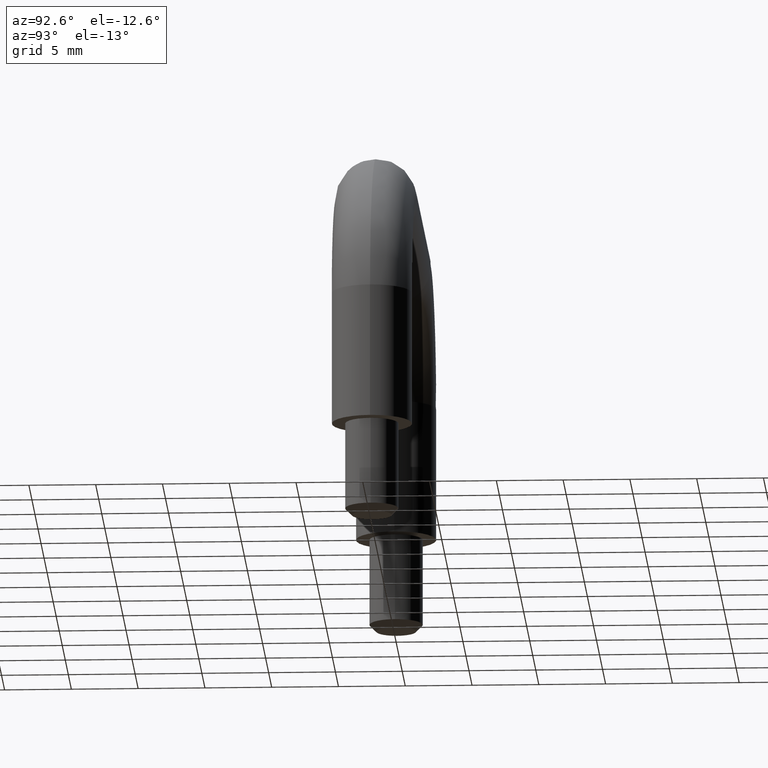
[diagram: clean part render]
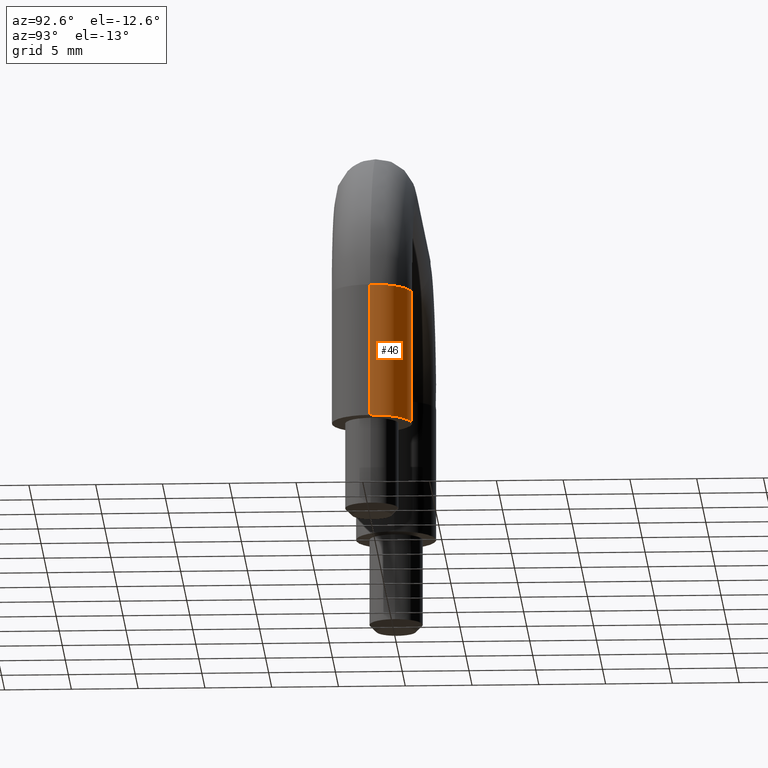
[diagram: same view with one face highlighted and labeled with its STEP entity id]
A machine part, auxiliary view. The second image highlights one B-rep face of the part: STEP entity #46.
In plain terms, the highlighted cylindrical surface (partial cylindrical patch) has radius 3 mm, axis along (0, -0, 1).
Its self-contained STEP definition (entity closure, byte-faithful):
#46=ADVANCED_FACE('',(#125),#124,.T.);
#124=CYLINDRICAL_SURFACE('',#409,3.00000000000E+00);
#125=FACE_OUTER_BOUND('',#410,.T.);
#406=CARTESIAN_POINT('',(1.99999999999E+01,0.00000000000E+00,-1.10000000000E+01));
#407=DIRECTION('',(0.00000000000E+00,-0.00000000000E+00,1.00000000000E+00));
#408=DIRECTION('',(1.00000000000E+00,-0.00000000000E+00,-0.00000000000E+00));
#409=AXIS2_PLACEMENT_3D('',#406,#407,#408);
#410=EDGE_LOOP('',(#572,#573,#574,#575));
#572=ORIENTED_EDGE('',*,*,#646,.F.);
#573=ORIENTED_EDGE('',*,*,#654,.F.);
#574=ORIENTED_EDGE('',*,*,#638,.F.);
#575=ORIENTED_EDGE('',*,*,#655,.T.);
#638=EDGE_CURVE('',#692,#693,#694,.T.);
#646=EDGE_CURVE('',#735,#728,#748,.T.);
#654=EDGE_CURVE('',#693,#735,#802,.T.);
#655=EDGE_CURVE('',#692,#728,#808,.T.);
#692=VERTEX_POINT('',#964);
#693=VERTEX_POINT('',#965);
#694=CIRCLE('',#969,3.00000000000E+00);
#728=VERTEX_POINT('',#990);
#735=VERTEX_POINT('',#995);
#748=CIRCLE('',#1008,3.00000000000E+00);
#802=(BOUNDED_CURVE() B_SPLINE_CURVE(1,(#1043,#1044),.UNSPECIFIED.,.F.,.F.) B_SPLINE_CURVE_WITH_KNOTS((2,2),(8.33333343261E-02,9.16666667006E-01),.UNSPECIFIED.) CURVE() GEOMETRIC_REPRESENTATION_ITEM() RATIONAL_B_SPLINE_CURVE((1.00000000000E+00,1.00000000000E+00)) REPRESENTATION_ITEM('') );
#808=(BOUNDED_CURVE() B_SPLINE_CURVE(1,(#1045,#1046),.UNSPECIFIED.,.F.,.F.) B_SPLINE_CURVE_WITH_KNOTS((2,2),(8.33333333333E-02,9.16666666667E-01),.UNSPECIFIED.) CURVE() GEOMETRIC_REPRESENTATION_ITEM() RATIONAL_B_SPLINE_CURVE((7.50000000000E-01,7.50000000000E-01)) REPRESENTATION_ITEM('') );
#964=CARTESIAN_POINT('',(1.69999999999E+01,-3.67381906147E-16,-1.60000000000E+01));
#965=CARTESIAN_POINT('',(2.29999999999E+01,-2.96059473233E-16,-1.60000000000E+01));
#966=CARTESIAN_POINT('',(1.99999999999E+01,0.00000000000E+00,-1.60000000000E+01));
#967=DIRECTION('',(0.00000000000E+00,0.00000000000E+00,-1.00000000000E+00));
#968=DIRECTION('',(-1.00000000000E+00,-0.00000000000E+00,-0.00000000000E+00));
#969=AXIS2_PLACEMENT_3D('',#966,#967,#968);
#990=CARTESIAN_POINT('',(1.69999999999E+01,-1.48029736617E-16,-6.00000000000E+00));
#995=CARTESIAN_POINT('',(2.29999999999E+01,0.00000000000E+00,-6.00000000000E+00));
#1005=CARTESIAN_POINT('',(1.99999999999E+01,0.00000000000E+00,-6.00000000000E+00));
#1006=DIRECTION('',(0.00000000000E+00,-0.00000000000E+00,1.00000000000E+00));
#1007=DIRECTION('',(-1.00000000000E+00,-0.00000000000E+00,-0.00000000000E+00));
#1008=AXIS2_PLACEMENT_3D('',#1005,#1006,#1007);
#1043=CARTESIAN_POINT('',(2.29999999999E+01,0.00000000000E+00,-1.59999999881E+01));
#1044=CARTESIAN_POINT('',(2.29999999999E+01,0.00000000000E+00,-5.99999999593E+00));
#1045=CARTESIAN_POINT('',(1.69999999999E+01,-1.48029736617E-16,-1.60000000000E+01));
#1046=CARTESIAN_POINT('',(1.69999999999E+01,-1.48029736617E-16,-6.00000000000E+00));